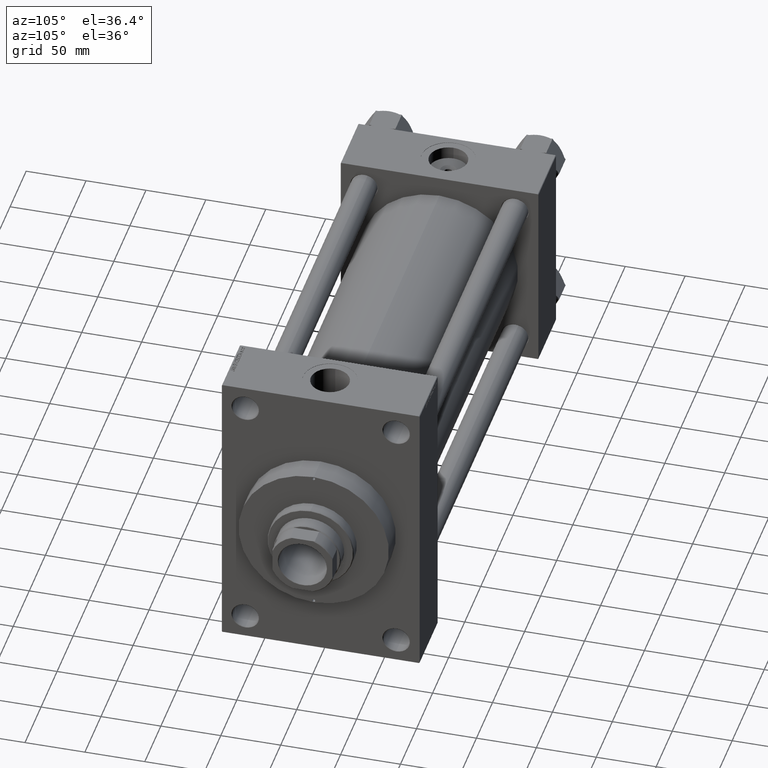
[diagram: clean part render]
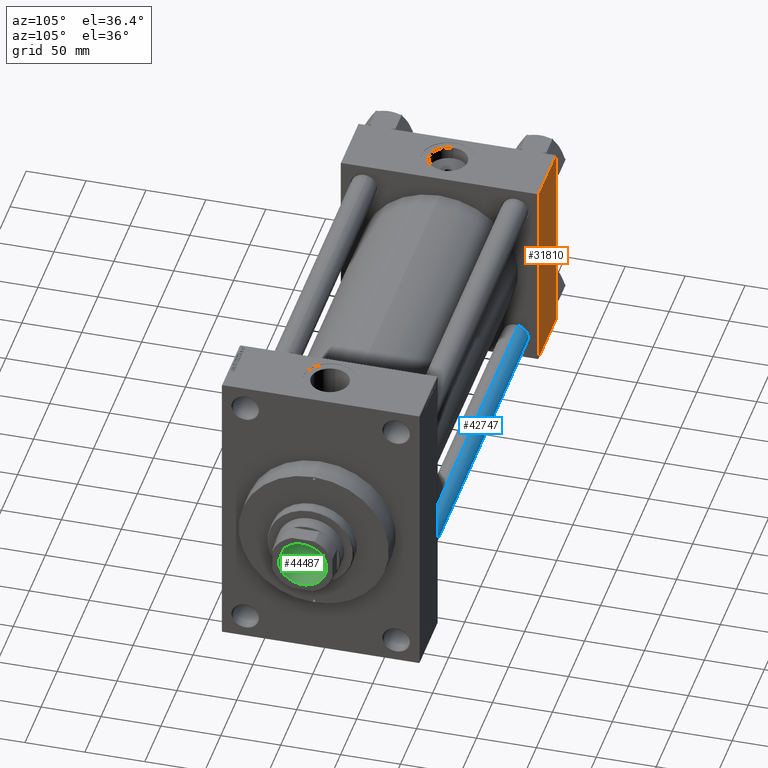
[diagram: same view with three faces highlighted in distinct colors, each labeled with its STEP entity id]
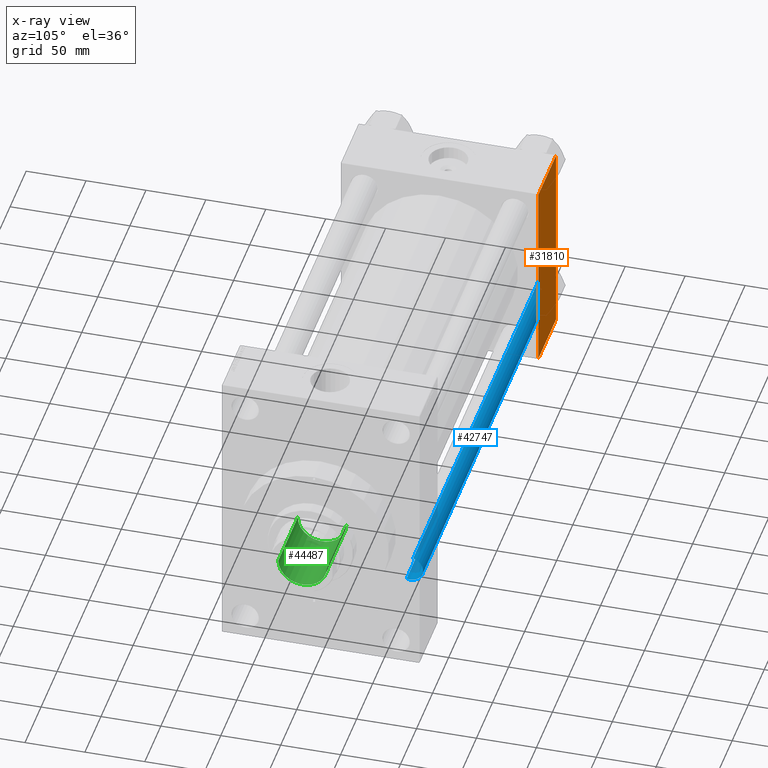
[diagram: x-ray of the same camera — body ghosted, the three highlighted faces saturated]
A machine part, auxiliary view with three faces highlighted in distinct colors.
The next image is the same camera in x-ray (body ghosted, the three faces saturated) — at least one of them is partly hidden behind the body in this view.
Their STEP definitions:

[orange] entity #31810 — the highlighted planar face has unit normal (0, 1, 0).
#1244 = PLANE ( 'NONE',  #5906 ) ;
#1614 = DIRECTION ( 'NONE',  ( 0.000000000000000000, 0.000000000000000000, -1.000000000000000000 ) ) ;
#2322 = DIRECTION ( 'NONE',  ( 1.000000000000000000, 0.000000000000000000, 0.000000000000000000 ) ) ;
#5906 = AXIS2_PLACEMENT_3D ( 'NONE', #23243, #41172, #37551 ) ;
#6346 = EDGE_CURVE ( 'NONE', #34998, #7601, #10406, .T. ) ;
#7601 = VERTEX_POINT ( 'NONE', #13054 ) ;
#7625 = ORIENTED_EDGE ( 'NONE', *, *, #28405, .T. ) ;
#10097 = VERTEX_POINT ( 'NONE', #23184 ) ;
#10406 = LINE ( 'NONE', #25144, #13290 ) ;
#11350 = LINE ( 'NONE', #40888, #33668 ) ;
#12481 = LINE ( 'NONE', #34752, #21644 ) ;
#13054 = CARTESIAN_POINT ( 'NONE',  ( 0.000000000000000000, 82.50000000000002842, -82.00000000000000000 ) ) ;
#13290 = VECTOR ( 'NONE', #31717, 1000.000000000000000 ) ;
#14394 = ORIENTED_EDGE ( 'NONE', *, *, #27778, .T. ) ;
#15502 = FACE_OUTER_BOUND ( 'NONE', #34656, .T. ) ;
#19334 = ORIENTED_EDGE ( 'NONE', *, *, #41267, .F. ) ;
#21644 = VECTOR ( 'NONE', #1614, 1000.000000000000000 ) ;
#23184 = CARTESIAN_POINT ( 'NONE',  ( 55.00000000000000000, 82.50000000000002842, 82.00000000000005684 ) ) ;
#23243 = CARTESIAN_POINT ( 'NONE',  ( 55.00000000000000000, 82.50000000000002842, 82.50000000000002842 ) ) ;
#25144 = CARTESIAN_POINT ( 'NONE',  ( 55.00000000000000000, 82.50000000000002842, -82.00000000000000000 ) ) ;
#25971 = VECTOR ( 'NONE', #2322, 1000.000000000000000 ) ;
#27778 = EDGE_CURVE ( 'NONE', #10097, #34998, #11350, .T. ) ;
#28405 = EDGE_CURVE ( 'NONE', #33682, #10097, #46825, .T. ) ;
#30456 = DIRECTION ( 'NONE',  ( 0.000000000000000000, 0.000000000000000000, -1.000000000000000000 ) ) ;
#31717 = DIRECTION ( 'NONE',  ( -1.000000000000000000, 0.000000000000000000, 0.000000000000000000 ) ) ;
#31810 = ADVANCED_FACE ( 'NONE', ( #15502 ), #1244, .T. ) ;
#33668 = VECTOR ( 'NONE', #30456, 1000.000000000000000 ) ;
#33682 = VERTEX_POINT ( 'NONE', #40951 ) ;
#34656 = EDGE_LOOP ( 'NONE', ( #14394, #43611, #19334, #7625 ) ) ;
#34752 = CARTESIAN_POINT ( 'NONE',  ( 0.000000000000000000, 82.50000000000002842, 82.50000000000002842 ) ) ;
#34998 = VERTEX_POINT ( 'NONE', #42295 ) ;
#35459 = CARTESIAN_POINT ( 'NONE',  ( 55.00000000000000000, 82.50000000000002842, 82.00000000000005684 ) ) ;
#37551 = DIRECTION ( 'NONE',  ( 0.000000000000000000, -0.000000000000000000, 1.000000000000000000 ) ) ;
#40888 = CARTESIAN_POINT ( 'NONE',  ( 55.00000000000000000, 82.50000000000002842, 82.50000000000002842 ) ) ;
#40951 = CARTESIAN_POINT ( 'NONE',  ( 0.000000000000000000, 82.50000000000002842, 82.00000000000005684 ) ) ;
#41172 = DIRECTION ( 'NONE',  ( -0.000000000000000000, 1.000000000000000000, 0.000000000000000000 ) ) ;
#41267 = EDGE_CURVE ( 'NONE', #33682, #7601, #12481, .T. ) ;
#42295 = CARTESIAN_POINT ( 'NONE',  ( 55.00000000000000000, 82.50000000000002842, -82.00000000000000000 ) ) ;
#43611 = ORIENTED_EDGE ( 'NONE', *, *, #6346, .T. ) ;
#46825 = LINE ( 'NONE', #35459, #25971 ) ;

[blue] entity #42747 — the highlighted cylindrical surface (edge-blend (fillet) strip) has radius 11 mm, axis along (1, -0, 0).
#365 = ORIENTED_EDGE ( 'NONE', *, *, #6925, .F. ) ;
#714 = DIRECTION ( 'NONE',  ( -0.000000000000000000, -0.000000000000000000, -1.000000000000000000 ) ) ;
#1146 = CARTESIAN_POINT ( 'NONE',  ( 11.00000000000000000, 1.347111479062088405E-15, 408.5000000000000000 ) ) ;
#3649 = CYLINDRICAL_SURFACE ( 'NONE', #46413, 11.00000000000000000 ) ;
#5352 = DIRECTION ( 'NONE',  ( 0.000000000000000000, 0.000000000000000000, -1.000000000000000000 ) ) ;
#6925 = EDGE_CURVE ( 'NONE', #21102, #20732, #19996, .T. ) ;
#7322 = VERTEX_POINT ( 'NONE', #10652 ) ;
#7380 = ORIENTED_EDGE ( 'NONE', *, *, #22163, .T. ) ;
#9215 = DIRECTION ( 'NONE',  ( 1.000000000000000000, 0.000000000000000000, 0.000000000000000000 ) ) ;
#10530 = DIRECTION ( 'NONE',  ( -0.000000000000000000, -0.000000000000000000, 1.000000000000000000 ) ) ;
#10652 = CARTESIAN_POINT ( 'NONE',  ( 11.00000000000000000, 1.347111479062088405E-15, 0.4999999999999449329 ) ) ;
#11001 = VECTOR ( 'NONE', #34774, 1000.000000000000000 ) ;
#11584 = LINE ( 'NONE', #33855, #35892 ) ;
#12126 = CIRCLE ( 'NONE', #44609, 11.00000000000000000 ) ;
#12211 = VERTEX_POINT ( 'NONE', #1146 ) ;
#14956 = CARTESIAN_POINT ( 'NONE',  ( -11.00000000000000000, 0.000000000000000000, 0.4999999999999449329 ) ) ;
#15352 = ORIENTED_EDGE ( 'NONE', *, *, #31184, .T. ) ;
#15795 = EDGE_CURVE ( 'NONE', #12211, #7322, #11584, .T. ) ;
#18384 = DIRECTION ( 'NONE',  ( -1.000000000000000000, 0.000000000000000000, 0.000000000000000000 ) ) ;
#19996 = LINE ( 'NONE', #33816, #11001 ) ;
#20732 = VERTEX_POINT ( 'NONE', #14956 ) ;
#21102 = VERTEX_POINT ( 'NONE', #44669 ) ;
#22163 = EDGE_CURVE ( 'NONE', #7322, #20732, #12126, .T. ) ;
#26126 = FACE_OUTER_BOUND ( 'NONE', #36172, .T. ) ;
#27346 = CARTESIAN_POINT ( 'NONE',  ( 0.000000000000000000, 0.000000000000000000, 408.5000000000000000 ) ) ;
#28623 = DIRECTION ( 'NONE',  ( -0.000000000000000000, -0.000000000000000000, -1.000000000000000000 ) ) ;
#28911 = CARTESIAN_POINT ( 'NONE',  ( 0.000000000000000000, 0.000000000000000000, 0.4999999999999449329 ) ) ;
#31184 = EDGE_CURVE ( 'NONE', #21102, #12211, #41405, .T. ) ;
#33406 = CARTESIAN_POINT ( 'NONE',  ( 0.000000000000000000, 0.000000000000000000, 409.0000000000000000 ) ) ;
#33816 = CARTESIAN_POINT ( 'NONE',  ( -11.00000000000000000, 0.000000000000000000, 409.0000000000000000 ) ) ;
#33855 = CARTESIAN_POINT ( 'NONE',  ( 11.00000000000000000, 1.347111479062088405E-15, 409.0000000000000000 ) ) ;
#34774 = DIRECTION ( 'NONE',  ( -0.000000000000000000, -0.000000000000000000, -1.000000000000000000 ) ) ;
#35892 = VECTOR ( 'NONE', #714, 1000.000000000000000 ) ;
#36172 = EDGE_LOOP ( 'NONE', ( #15352, #37742, #7380, #365 ) ) ;
#37742 = ORIENTED_EDGE ( 'NONE', *, *, #15795, .T. ) ;
#41405 = CIRCLE ( 'NONE', #47581, 11.00000000000000000 ) ;
#42747 = ADVANCED_FACE ( 'NONE', ( #26126 ), #3649, .T. ) ;
#43200 = DIRECTION ( 'NONE',  ( 1.000000000000000000, 0.000000000000000000, 0.000000000000000000 ) ) ;
#44609 = AXIS2_PLACEMENT_3D ( 'NONE', #28911, #10530, #43200 ) ;
#44669 = CARTESIAN_POINT ( 'NONE',  ( -11.00000000000000000, 0.000000000000000000, 408.5000000000000000 ) ) ;
#46413 = AXIS2_PLACEMENT_3D ( 'NONE', #33406, #28623, #18384 ) ;
#47581 = AXIS2_PLACEMENT_3D ( 'NONE', #27346, #5352, #9215 ) ;

[green] entity #44487 — the highlighted cylindrical surface (edge-blend (fillet) strip) has radius 20.25 mm, axis along (1, 0, 0).
#1975 = DIRECTION ( 'NONE',  ( -0.000000000000000000, -0.000000000000000000, 1.000000000000000000 ) ) ;
#2006 = EDGE_CURVE ( 'NONE', #8529, #31080, #25491, .T. ) ;
#2245 = CARTESIAN_POINT ( 'NONE',  ( 0.000000000000000000, 0.000000000000000000, 426.7000000000001023 ) ) ;
#4672 = AXIS2_PLACEMENT_3D ( 'NONE', #2245, #31980, #17681 ) ;
#5657 = ORIENTED_EDGE ( 'NONE', *, *, #18749, .T. ) ;
#5816 = DIRECTION ( 'NONE',  ( -0.000000000000000000, -0.000000000000000000, 1.000000000000000000 ) ) ;
#6188 = VERTEX_POINT ( 'NONE', #9240 ) ;
#6402 = CARTESIAN_POINT ( 'NONE',  ( 0.000000000000000000, 0.000000000000000000, 427.0000000000000000 ) ) ;
#8529 = VERTEX_POINT ( 'NONE', #38566 ) ;
#9240 = CARTESIAN_POINT ( 'NONE',  ( -20.24999999999998934, 2.479909768273389117E-15, 366.0000000000000000 ) ) ;
#9577 = VERTEX_POINT ( 'NONE', #18649 ) ;
#9785 = DIRECTION ( 'NONE',  ( -0.000000000000000000, -0.000000000000000000, 1.000000000000000000 ) ) ;
#13050 = ORIENTED_EDGE ( 'NONE', *, *, #30187, .F. ) ;
#14303 = VECTOR ( 'NONE', #22439, 1000.000000000000000 ) ;
#14682 = AXIS2_PLACEMENT_3D ( 'NONE', #6402, #9785, #24530 ) ;
#16169 = CIRCLE ( 'NONE', #33168, 20.24999999999998934 ) ;
#16474 = LINE ( 'NONE', #24211, #37584 ) ;
#17681 = DIRECTION ( 'NONE',  ( 1.000000000000000000, 0.000000000000000000, 0.000000000000000000 ) ) ;
#18649 = CARTESIAN_POINT ( 'NONE',  ( 20.24999999999998934, 0.000000000000000000, 366.0000000000000000 ) ) ;
#18749 = EDGE_CURVE ( 'NONE', #9577, #8529, #16474, .T. ) ;
#19199 = ORIENTED_EDGE ( 'NONE', *, *, #42925, .F. ) ;
#19259 = EDGE_LOOP ( 'NONE', ( #13050, #19199, #5657, #38716 ) ) ;
#22439 = DIRECTION ( 'NONE',  ( -0.000000000000000000, -0.000000000000000000, 1.000000000000000000 ) ) ;
#22752 = CARTESIAN_POINT ( 'NONE',  ( -20.24999999999999289, 2.479909768273389511E-15, 426.7000000000001023 ) ) ;
#24211 = CARTESIAN_POINT ( 'NONE',  ( 20.24999999999999289, 0.000000000000000000, 427.0000000000000000 ) ) ;
#24530 = DIRECTION ( 'NONE',  ( 1.000000000000000000, 0.000000000000000000, 0.000000000000000000 ) ) ;
#24757 = FACE_OUTER_BOUND ( 'NONE', #19259, .T. ) ;
#25491 = CIRCLE ( 'NONE', #4672, 20.24999999999999289 ) ;
#30187 = EDGE_CURVE ( 'NONE', #6188, #31080, #39890, .T. ) ;
#31080 = VERTEX_POINT ( 'NONE', #22752 ) ;
#31980 = DIRECTION ( 'NONE',  ( 0.000000000000000000, 0.000000000000000000, 1.000000000000000000 ) ) ;
#32276 = CYLINDRICAL_SURFACE ( 'NONE', #14682, 20.24999999999999289 ) ;
#33168 = AXIS2_PLACEMENT_3D ( 'NONE', #43277, #5816, #35311 ) ;
#35311 = DIRECTION ( 'NONE',  ( 1.000000000000000000, 0.000000000000000000, 0.000000000000000000 ) ) ;
#37584 = VECTOR ( 'NONE', #1975, 1000.000000000000000 ) ;
#38566 = CARTESIAN_POINT ( 'NONE',  ( 20.24999999999999289, 0.000000000000000000, 426.7000000000001023 ) ) ;
#38716 = ORIENTED_EDGE ( 'NONE', *, *, #2006, .T. ) ;
#39890 = LINE ( 'NONE', #47387, #14303 ) ;
#42925 = EDGE_CURVE ( 'NONE', #9577, #6188, #16169, .T. ) ;
#43277 = CARTESIAN_POINT ( 'NONE',  ( 0.000000000000000000, 0.000000000000000000, 366.0000000000000000 ) ) ;
#44487 = ADVANCED_FACE ( 'NONE', ( #24757 ), #32276, .F. ) ;
#47387 = CARTESIAN_POINT ( 'NONE',  ( -20.24999999999999289, 2.479909768273389511E-15, 427.0000000000000000 ) ) ;